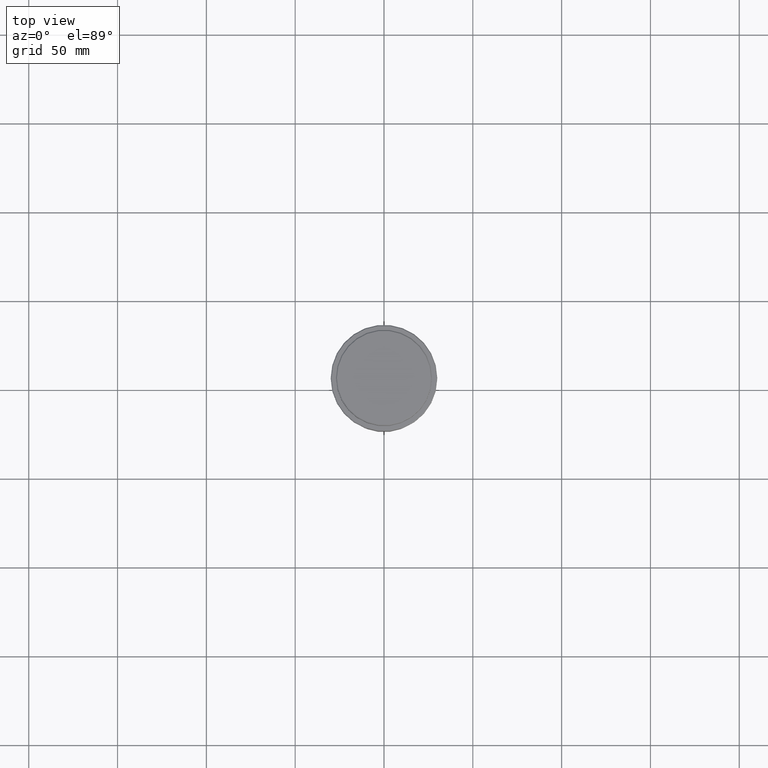
[diagram: clean part render]
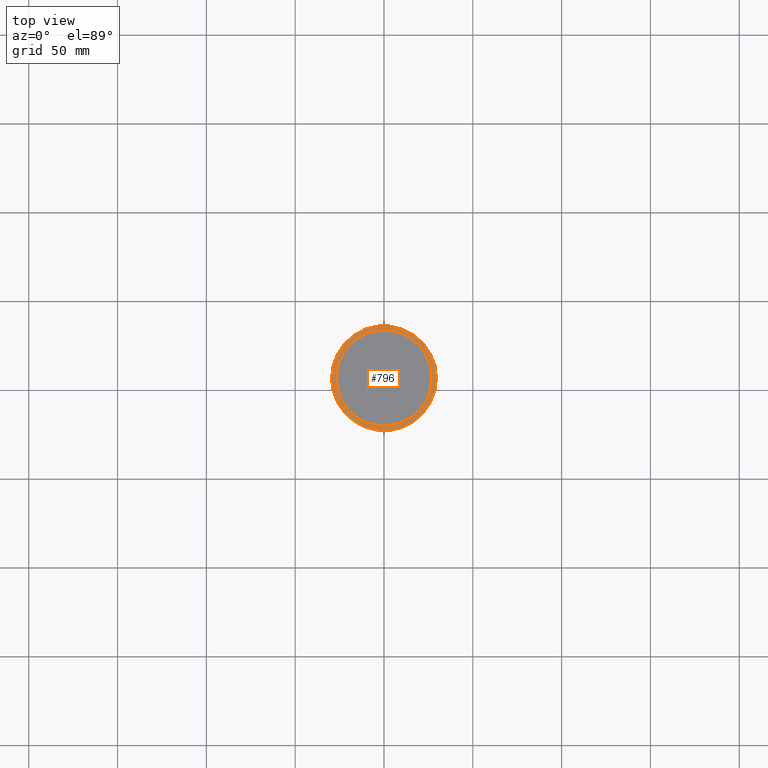
[diagram: same view with one face highlighted and labeled with its STEP entity id]
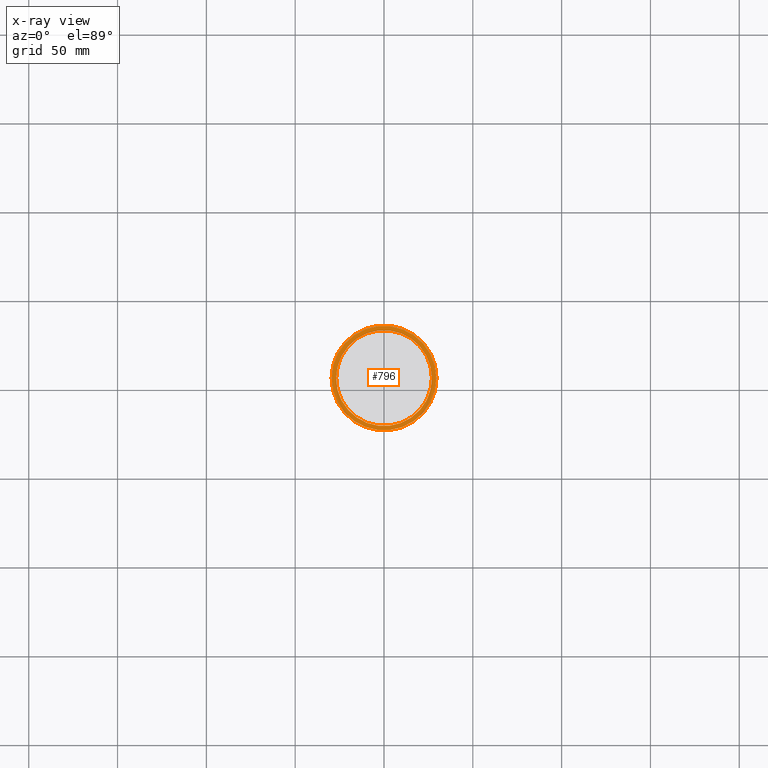
[diagram: x-ray of the same camera — body ghosted, the highlighted face saturated]
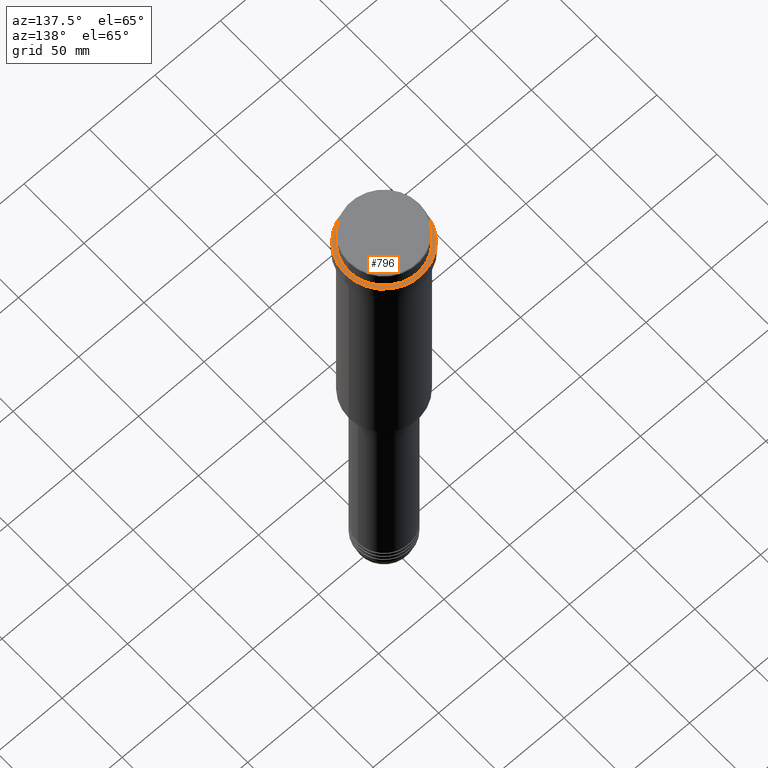
[diagram: same view with one face highlighted and labeled with its STEP entity id]
A machine part, top view. The second image highlights one B-rep face of the part: STEP entity #796.
The next image is the same camera in x-ray: the body ghosted, the highlighted face saturated — about 0% of this face is hidden behind the body in this view.
A second angle (auxiliary view) of the same face is appended — the face is thin or edge-on in the first view.
In plain terms, the highlighted planar face has unit normal (0, -0, 1).
Its self-contained STEP definition (entity closure, byte-faithful):
#23 = DIRECTION ( 'NONE',  ( 0.000000000000000000, 0.000000000000000000, -1.000000000000000000 ) ) ;
#29 = EDGE_CURVE ( 'NONE', #1392, #216, #488, .T. ) ;
#152 = AXIS2_PLACEMENT_3D ( 'NONE', #1398, #764, #305 ) ;
#186 = CIRCLE ( 'NONE', #1174, 29.50000000000002487 ) ;
#216 = VERTEX_POINT ( 'NONE', #1373 ) ;
#304 = DIRECTION ( 'NONE',  ( 1.000000000000000000, 0.000000000000000000, 0.000000000000000000 ) ) ;
#305 = DIRECTION ( 'NONE',  ( 1.000000000000000000, 0.000000000000000000, 0.000000000000000000 ) ) ;
#313 = FACE_BOUND ( 'NONE', #1353, .T. ) ;
#326 = AXIS2_PLACEMENT_3D ( 'NONE', #1060, #963, #1161 ) ;
#331 = DIRECTION ( 'NONE',  ( -0.000000000000000000, -0.000000000000000000, 1.000000000000000000 ) ) ;
#379 = EDGE_CURVE ( 'NONE', #793, #1298, #822, .T. ) ;
#405 = EDGE_CURVE ( 'NONE', #1298, #793, #186, .T. ) ;
#420 = CARTESIAN_POINT ( 'NONE',  ( 29.50000000000002487, 3.643324227463376968E-15, -12.00000000000000178 ) ) ;
#488 = CIRCLE ( 'NONE', #1258, 26.99999999999999289 ) ;
#521 = FACE_OUTER_BOUND ( 'NONE', #1343, .T. ) ;
#586 = CARTESIAN_POINT ( 'NONE',  ( 0.000000000000000000, 0.000000000000000000, -12.00000000000000178 ) ) ;
#599 = ORIENTED_EDGE ( 'NONE', *, *, #405, .T. ) ;
#700 = DIRECTION ( 'NONE',  ( 1.000000000000000000, 0.000000000000000000, 0.000000000000000000 ) ) ;
#745 = CARTESIAN_POINT ( 'NONE',  ( 0.000000000000000000, 0.000000000000000000, -12.00000000000000178 ) ) ;
#754 = CIRCLE ( 'NONE', #929, 26.99999999999999289 ) ;
#755 = EDGE_CURVE ( 'NONE', #216, #1392, #754, .T. ) ;
#761 = ORIENTED_EDGE ( 'NONE', *, *, #755, .T. ) ;
#764 = DIRECTION ( 'NONE',  ( -0.000000000000000000, -0.000000000000000000, 1.000000000000000000 ) ) ;
#793 = VERTEX_POINT ( 'NONE', #934 ) ;
#796 = ADVANCED_FACE ( 'NONE', ( #521, #313 ), #1370, .T. ) ;
#802 = CARTESIAN_POINT ( 'NONE',  ( 26.99999999999999289, 0.000000000000000000, -12.00000000000000178 ) ) ;
#822 = CIRCLE ( 'NONE', #152, 29.50000000000002487 ) ;
#926 = ORIENTED_EDGE ( 'NONE', *, *, #29, .T. ) ;
#929 = AXIS2_PLACEMENT_3D ( 'NONE', #1272, #1150, #304 ) ;
#934 = CARTESIAN_POINT ( 'NONE',  ( -29.50000000000002487, 0.000000000000000000, -12.00000000000000178 ) ) ;
#963 = DIRECTION ( 'NONE',  ( 0.000000000000000000, -0.000000000000000000, 1.000000000000000000 ) ) ;
#998 = ORIENTED_EDGE ( 'NONE', *, *, #379, .T. ) ;
#1060 = CARTESIAN_POINT ( 'NONE',  ( 0.000000000000000000, 26.49999999999999645, -12.00000000000000178 ) ) ;
#1150 = DIRECTION ( 'NONE',  ( 0.000000000000000000, 0.000000000000000000, -1.000000000000000000 ) ) ;
#1161 = DIRECTION ( 'NONE',  ( 1.000000000000000000, 0.000000000000000000, 0.000000000000000000 ) ) ;
#1174 = AXIS2_PLACEMENT_3D ( 'NONE', #745, #331, #1184 ) ;
#1184 = DIRECTION ( 'NONE',  ( 1.000000000000000000, 0.000000000000000000, 0.000000000000000000 ) ) ;
#1258 = AXIS2_PLACEMENT_3D ( 'NONE', #586, #23, #700 ) ;
#1272 = CARTESIAN_POINT ( 'NONE',  ( 0.000000000000000000, 0.000000000000000000, -12.00000000000000178 ) ) ;
#1298 = VERTEX_POINT ( 'NONE', #420 ) ;
#1343 = EDGE_LOOP ( 'NONE', ( #998, #599 ) ) ;
#1353 = EDGE_LOOP ( 'NONE', ( #926, #761 ) ) ;
#1370 = PLANE ( 'NONE',  #326 ) ;
#1373 = CARTESIAN_POINT ( 'NONE',  ( -26.99999999999999289, 3.306546357697852944E-15, -12.00000000000000178 ) ) ;
#1392 = VERTEX_POINT ( 'NONE', #802 ) ;
#1398 = CARTESIAN_POINT ( 'NONE',  ( 0.000000000000000000, 0.000000000000000000, -12.00000000000000178 ) ) ;